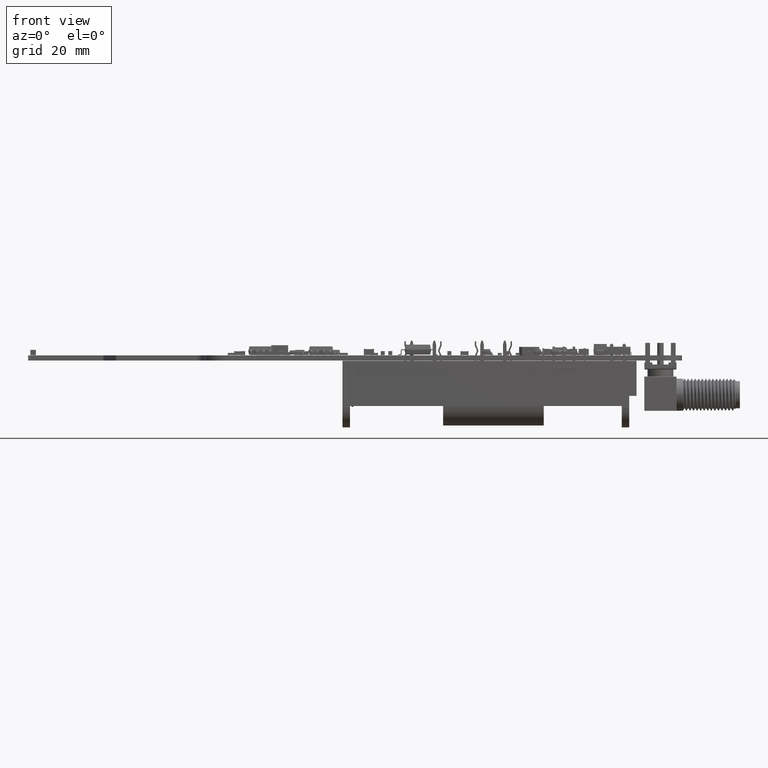
[diagram: clean part render]
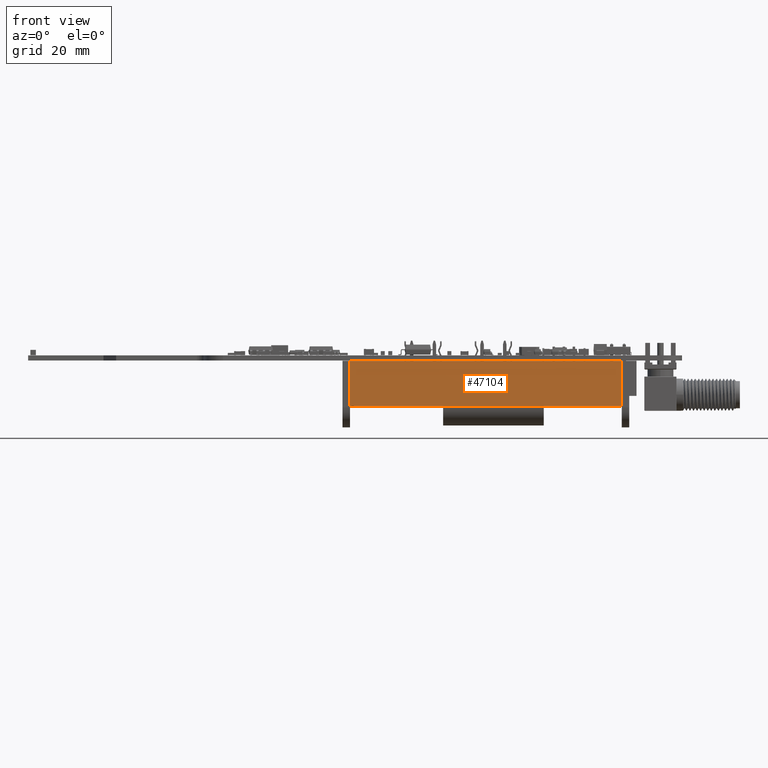
[diagram: same view with one face highlighted and labeled with its STEP entity id]
A machine part, front view. The second image highlights one B-rep face of the part: STEP entity #47104.
In plain terms, the highlighted planar face has unit normal (0, -1, 0).
Its self-contained STEP definition (entity closure, byte-faithful):
#44843 = VERTEX_POINT('',#44844);
#44844 = CARTESIAN_POINT('',(8.,9.,55.5));
#44858 = PLANE('',#44859);
#44859 = AXIS2_PLACEMENT_3D('',#44860,#44861,#44862);
#44860 = CARTESIAN_POINT('',(8.,0.,55.5));
#44861 = DIRECTION('',(-1.,0.,0.));
#44862 = DIRECTION('',(0.,1.,0.));
#44886 = PLANE('',#44887);
#44887 = AXIS2_PLACEMENT_3D('',#44888,#44889,#44890);
#44888 = CARTESIAN_POINT('',(7.5,9.,1.5));
#44889 = DIRECTION('',(0.,1.,0.));
#44890 = DIRECTION('',(1.,0.,0.));
#45588 = VERTEX_POINT('',#45589);
#45589 = CARTESIAN_POINT('',(8.,9.,1.5));
#45695 = EDGE_CURVE('',#45588,#44843,#45696,.T.);
#45696 = SURFACE_CURVE('',#45697,(#45701,#45708),.PCURVE_S1.);
#45697 = LINE('',#45698,#45699);
#45698 = CARTESIAN_POINT('',(8.,9.,1.5));
#45699 = VECTOR('',#45700,1.);
#45700 = DIRECTION('',(0.,0.,1.));
#45701 = PCURVE('',#44886,#45702);
#45702 = DEFINITIONAL_REPRESENTATION('',(#45703),#45707);
#45703 = LINE('',#45704,#45705);
#45704 = CARTESIAN_POINT('',(0.5,0.));
#45705 = VECTOR('',#45706,1.);
#45706 = DIRECTION('',(0.,-1.));
#45707 = ( GEOMETRIC_REPRESENTATION_CONTEXT(2) 
PARAMETRIC_REPRESENTATION_CONTEXT() REPRESENTATION_CONTEXT('2D SPACE',''
  ) );
#45708 = PCURVE('',#45709,#45714);
#45709 = PLANE('',#45710);
#45710 = AXIS2_PLACEMENT_3D('',#45711,#45712,#45713);
#45711 = CARTESIAN_POINT('',(8.,9.,1.5));
#45712 = DIRECTION('',(1.,0.,0.));
#45713 = DIRECTION('',(0.,-1.,0.));
#45714 = DEFINITIONAL_REPRESENTATION('',(#45715),#45719);
#45715 = LINE('',#45716,#45717);
#45716 = CARTESIAN_POINT('',(0.,0.));
#45717 = VECTOR('',#45718,1.);
#45718 = DIRECTION('',(0.,-1.));
#45719 = ( GEOMETRIC_REPRESENTATION_CONTEXT(2) 
PARAMETRIC_REPRESENTATION_CONTEXT() REPRESENTATION_CONTEXT('2D SPACE',''
  ) );
#45725 = VERTEX_POINT('',#45726);
#45726 = CARTESIAN_POINT('',(8.,0.,55.5));
#45772 = EDGE_CURVE('',#45725,#44843,#45773,.T.);
#45773 = SURFACE_CURVE('',#45774,(#45778,#45785),.PCURVE_S1.);
#45774 = LINE('',#45775,#45776);
#45775 = CARTESIAN_POINT('',(8.,0.,55.5));
#45776 = VECTOR('',#45777,1.);
#45777 = DIRECTION('',(0.,1.,0.));
#45778 = PCURVE('',#44858,#45779);
#45779 = DEFINITIONAL_REPRESENTATION('',(#45780),#45784);
#45780 = LINE('',#45781,#45782);
#45781 = CARTESIAN_POINT('',(0.,0.));
#45782 = VECTOR('',#45783,1.);
#45783 = DIRECTION('',(1.,0.));
#45784 = ( GEOMETRIC_REPRESENTATION_CONTEXT(2) 
PARAMETRIC_REPRESENTATION_CONTEXT() REPRESENTATION_CONTEXT('2D SPACE',''
  ) );
#45785 = PCURVE('',#45709,#45786);
#45786 = DEFINITIONAL_REPRESENTATION('',(#45787),#45791);
#45787 = LINE('',#45788,#45789);
#45788 = CARTESIAN_POINT('',(9.,-54.));
#45789 = VECTOR('',#45790,1.);
#45790 = DIRECTION('',(-1.,0.));
#45791 = ( GEOMETRIC_REPRESENTATION_CONTEXT(2) 
PARAMETRIC_REPRESENTATION_CONTEXT() REPRESENTATION_CONTEXT('2D SPACE',''
  ) );
#45923 = PLANE('',#45924);
#45924 = AXIS2_PLACEMENT_3D('',#45925,#45926,#45927);
#45925 = CARTESIAN_POINT('',(8.,0.,1.5));
#45926 = DIRECTION('',(0.,-1.,0.));
#45927 = DIRECTION('',(-1.,0.,0.));
#46136 = PLANE('',#46137);
#46137 = AXIS2_PLACEMENT_3D('',#46138,#46139,#46140);
#46138 = CARTESIAN_POINT('',(8.,0.,0.));
#46139 = DIRECTION('',(-1.,0.,0.));
#46140 = DIRECTION('',(0.,1.,0.));
#47104 = ADVANCED_FACE('',(#47105),#45709,.T.);
#47105 = FACE_BOUND('',#47106,.T.);
#47106 = EDGE_LOOP('',(#47107,#47108,#47109,#47132));
#47107 = ORIENTED_EDGE('',*,*,#45695,.T.);
#47108 = ORIENTED_EDGE('',*,*,#45772,.F.);
#47109 = ORIENTED_EDGE('',*,*,#47110,.F.);
#47110 = EDGE_CURVE('',#47111,#45725,#47113,.T.);
#47111 = VERTEX_POINT('',#47112);
#47112 = CARTESIAN_POINT('',(8.,0.,1.5));
#47113 = SURFACE_CURVE('',#47114,(#47118,#47125),.PCURVE_S1.);
#47114 = LINE('',#47115,#47116);
#47115 = CARTESIAN_POINT('',(8.,0.,1.5));
#47116 = VECTOR('',#47117,1.);
#47117 = DIRECTION('',(0.,0.,1.));
#47118 = PCURVE('',#45709,#47119);
#47119 = DEFINITIONAL_REPRESENTATION('',(#47120),#47124);
#47120 = LINE('',#47121,#47122);
#47121 = CARTESIAN_POINT('',(9.,0.));
#47122 = VECTOR('',#47123,1.);
#47123 = DIRECTION('',(0.,-1.));
#47124 = ( GEOMETRIC_REPRESENTATION_CONTEXT(2) 
PARAMETRIC_REPRESENTATION_CONTEXT() REPRESENTATION_CONTEXT('2D SPACE',''
  ) );
#47125 = PCURVE('',#45923,#47126);
#47126 = DEFINITIONAL_REPRESENTATION('',(#47127),#47131);
#47127 = LINE('',#47128,#47129);
#47128 = CARTESIAN_POINT('',(0.,-0.));
#47129 = VECTOR('',#47130,1.);
#47130 = DIRECTION('',(0.,-1.));
#47131 = ( GEOMETRIC_REPRESENTATION_CONTEXT(2) 
PARAMETRIC_REPRESENTATION_CONTEXT() REPRESENTATION_CONTEXT('2D SPACE',''
  ) );
#47132 = ORIENTED_EDGE('',*,*,#47133,.F.);
#47133 = EDGE_CURVE('',#45588,#47111,#47134,.T.);
#47134 = SURFACE_CURVE('',#47135,(#47139,#47146),.PCURVE_S1.);
#47135 = LINE('',#47136,#47137);
#47136 = CARTESIAN_POINT('',(8.,9.,1.5));
#47137 = VECTOR('',#47138,1.);
#47138 = DIRECTION('',(0.,-1.,0.));
#47139 = PCURVE('',#45709,#47140);
#47140 = DEFINITIONAL_REPRESENTATION('',(#47141),#47145);
#47141 = LINE('',#47142,#47143);
#47142 = CARTESIAN_POINT('',(0.,0.));
#47143 = VECTOR('',#47144,1.);
#47144 = DIRECTION('',(1.,0.));
#47145 = ( GEOMETRIC_REPRESENTATION_CONTEXT(2) 
PARAMETRIC_REPRESENTATION_CONTEXT() REPRESENTATION_CONTEXT('2D SPACE',''
  ) );
#47146 = PCURVE('',#46136,#47147);
#47147 = DEFINITIONAL_REPRESENTATION('',(#47148),#47152);
#47148 = LINE('',#47149,#47150);
#47149 = CARTESIAN_POINT('',(9.,-1.5));
#47150 = VECTOR('',#47151,1.);
#47151 = DIRECTION('',(-1.,0.));
#47152 = ( GEOMETRIC_REPRESENTATION_CONTEXT(2) 
PARAMETRIC_REPRESENTATION_CONTEXT() REPRESENTATION_CONTEXT('2D SPACE',''
  ) );